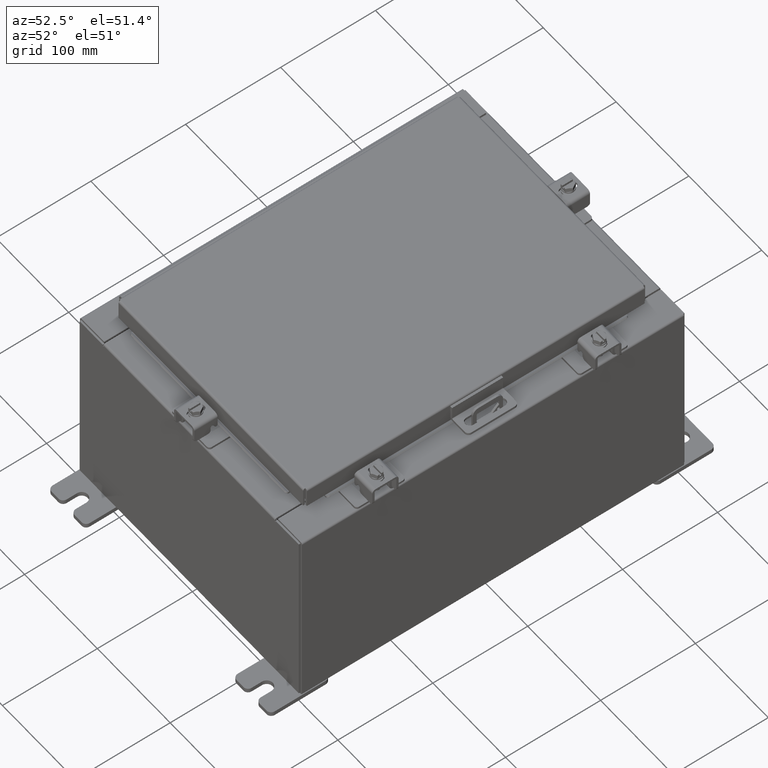
[diagram: clean part render]
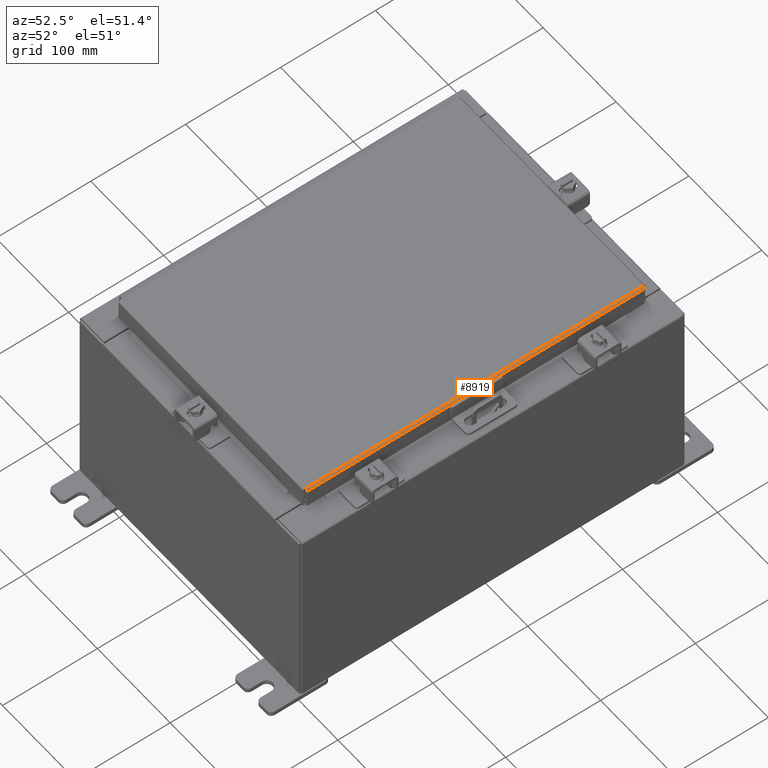
[diagram: same view with one face highlighted and labeled with its STEP entity id]
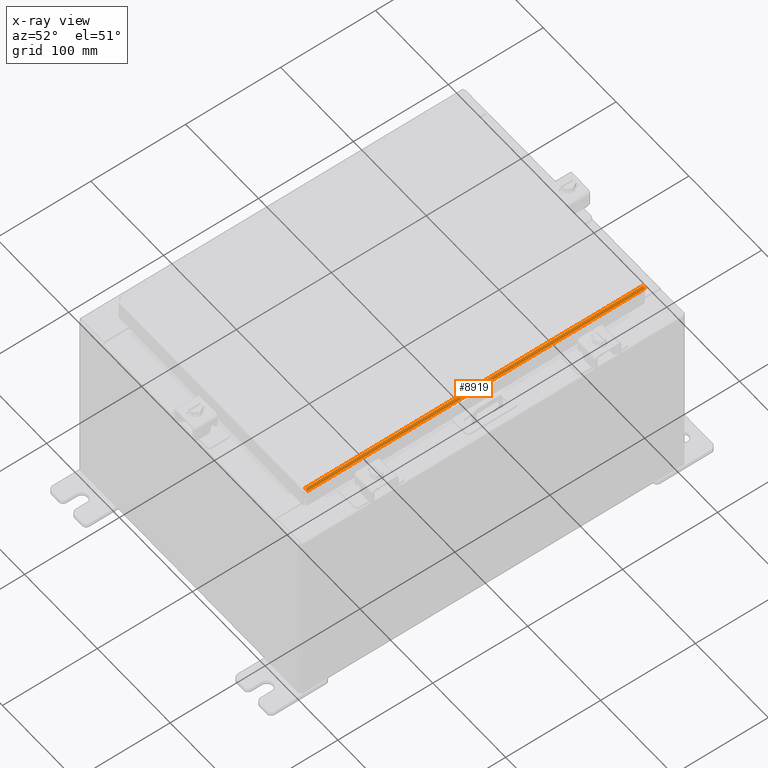
[diagram: x-ray of the same camera — body ghosted, the highlighted face saturated]
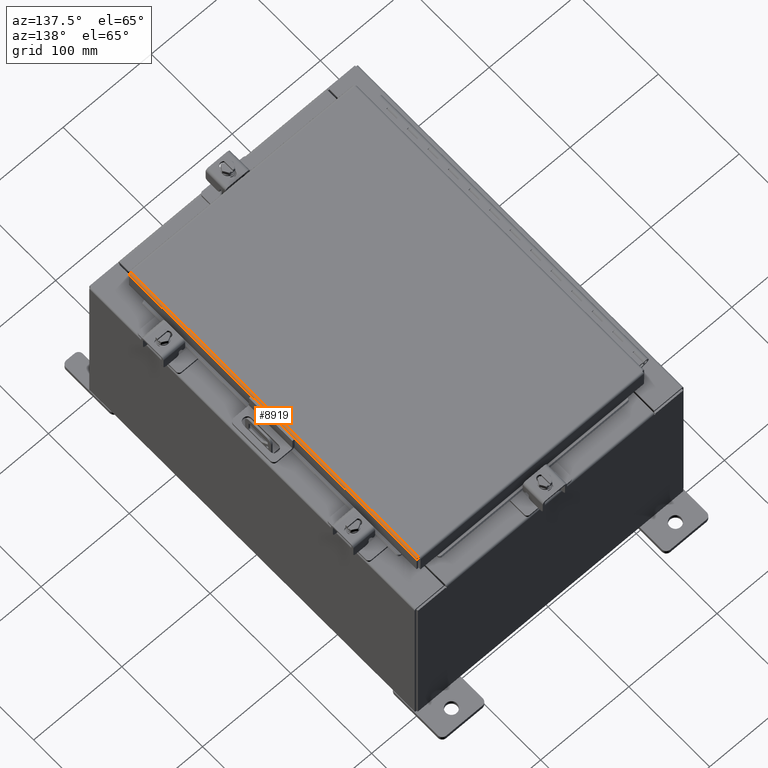
[diagram: same view with one face highlighted and labeled with its STEP entity id]
A machine part, auxiliary view. The second image highlights one B-rep face of the part: STEP entity #8919.
The next image is the same camera in x-ray: the body ghosted, the highlighted face saturated — about 0% of this face is hidden behind the body in this view.
A second angle (auxiliary view) of the same face is appended — the face is thin or edge-on in the first view.
In plain terms, the highlighted cylindrical surface (edge-blend (fillet) strip) has radius 2.2276 mm, axis along (-0, -1, -0).
Its self-contained STEP definition (entity closure, byte-faithful):
#147 = CARTESIAN_POINT ( 'NONE',  ( 4.990299999999998600, -7.006300000000000400, 3.414809992080329000E-016 ) ) ;
#513 = CARTESIAN_POINT ( 'NONE',  ( 4.990299999999998600, 7.006300000000000400, -2.048885995248197400E-016 ) ) ;
#3275 = ORIENTED_EDGE ( 'NONE', *, *, #8280, .F. ) ;
#3423 = VECTOR ( 'NONE', #21882, 39.37007874015748100 ) ;
#4015 = B_SPLINE_CURVE_WITH_KNOTS ( 'NONE', 3,
 ( #5132, #25199, #13107, #19168, #7152, #21193, #9172, #23240, #11202, #25280 ),
 .UNSPECIFIED., .F., .F.,
 ( 4, 2, 2, 2, 4 ),
 ( 0.0000000000000000000, 0.2500000000000000000, 0.5000000000000000000, 0.7500000000000000000, 1.000000000000000000 ),
 .UNSPECIFIED. ) ;
#5132 = CARTESIAN_POINT ( 'NONE',  ( 5.077999999999998500, -7.005157864376269700, -0.08769999999999897300 ) ) ;
#5522 = VERTEX_POINT ( 'NONE', #16359 ) ;
#5945 = CARTESIAN_POINT ( 'NONE',  ( 5.077999999999998500, 7.005157864376269700, -0.08769999999999951400 ) ) ;
#6046 = AXIS2_PLACEMENT_3D ( 'NONE', #23146, #11110, #20680 ) ;
#6446 = VERTEX_POINT ( 'NONE', #5945 ) ;
#6557 = CARTESIAN_POINT ( 'NONE',  ( 5.034467384578526600, 7.005919288125420900, -0.01106893374133180600 ) ) ;
#6686 = DIRECTION ( 'NONE',  ( 0.0000000000000000000, 1.000000000000000000, 0.0000000000000000000 ) ) ;
#6812 = EDGE_LOOP ( 'NONE', ( #9542, #3275, #22989, #7993 ) ) ;
#7042 = FACE_OUTER_BOUND ( 'NONE', #6812, .T. ) ;
#7152 = CARTESIAN_POINT ( 'NONE',  ( 5.060430782078317000, -7.005633754219491700, -0.03380425265819786400 ) ) ;
#7993 = ORIENTED_EDGE ( 'NONE', *, *, #23085, .F. ) ;
#8280 = EDGE_CURVE ( 'NONE', #14443, #12635, #4015, .T. ) ;
#8576 = CARTESIAN_POINT ( 'NONE',  ( 5.060430782078320500, 7.005633754219490000, -0.03380425265820125700 ) ) ;
#8610 = CARTESIAN_POINT ( 'NONE',  ( 5.077999999999998500, -7.005157864376269700, -0.08769999999999897300 ) ) ;
#8747 = LINE ( 'NONE', #26042, #3423 ) ;
#8919 = ADVANCED_FACE ( 'NONE', ( #7042 ), #17086, .T. ) ;
#9172 = CARTESIAN_POINT ( 'NONE',  ( 5.034467384578526600, -7.005919288125422600, -0.01106893374133063200 ) ) ;
#9542 = ORIENTED_EDGE ( 'NONE', *, *, #26069, .F. ) ;
#10613 = CARTESIAN_POINT ( 'NONE',  ( 5.075717403743809100, 7.005348220313559100, -0.06474471054169367300 ) ) ;
#11110 = DIRECTION ( 'NONE',  ( -0.0000000000000000000, -1.000000000000000000, -0.0000000000000000000 ) ) ;
#11202 = CARTESIAN_POINT ( 'NONE',  ( 5.001779903154990800, -7.006204822031357100, 3.426148228382157600E-016 ) ) ;
#12606 = CARTESIAN_POINT ( 'NONE',  ( 5.077999999999998500, 7.005157864376269700, -0.08769999999999951400 ) ) ;
#12635 = VERTEX_POINT ( 'NONE', #147 ) ;
#13107 = CARTESIAN_POINT ( 'NONE',  ( 5.075717403743807300, -7.005348220313559100, -0.06474471054168771900 ) ) ;
#13309 = VECTOR ( 'NONE', #6686, 39.37007874015748100 ) ;
#13938 = LINE ( 'NONE', #20662, #13309 ) ;
#14443 = VERTEX_POINT ( 'NONE', #8610 ) ;
#16359 = CARTESIAN_POINT ( 'NONE',  ( 4.990299999999998600, 7.006300000000000400, -2.048885995248197400E-016 ) ) ;
#16984 = EDGE_CURVE ( 'NONE', #6446, #14443, #8747, .T. ) ;
#17086 = CYLINDRICAL_SURFACE ( 'NONE', #6046, 0.08770000000000026400 ) ;
#18589 = CARTESIAN_POINT ( 'NONE',  ( 5.013255289458308900, 7.006109644062711100, -0.002282596256188504900 ) ) ;
#19168 = CARTESIAN_POINT ( 'NONE',  ( 5.066931066258664600, -7.005538576250844900, -0.04353261542146956400 ) ) ;
#20615 = CARTESIAN_POINT ( 'NONE',  ( 5.044195747341801100, 7.005824110156779300, -0.01756921792168015000 ) ) ;
#20662 = CARTESIAN_POINT ( 'NONE',  ( 4.990299999999998600, -7.006300000000000400, 3.414809992080329000E-016 ) ) ;
#20680 = DIRECTION ( 'NONE',  ( 1.000000000000000000, 0.0000000000000000000, 2.725618009642215600E-015 ) ) ;
#21193 = CARTESIAN_POINT ( 'NONE',  ( 5.044195747341799300, -7.005824110156780200, -0.01756921792167830500 ) ) ;
#21882 = DIRECTION ( 'NONE',  ( -2.171061248348209200E-031, -1.000000000000000000, 7.701855070945201600E-017 ) ) ;
#22629 = CARTESIAN_POINT ( 'NONE',  ( 5.066931066258668200, 7.005538576250847500, -0.04353261542147385900 ) ) ;
#22989 = ORIENTED_EDGE ( 'NONE', *, *, #16984, .F. ) ;
#23085 = EDGE_CURVE ( 'NONE', #5522, #6446, #25129, .T. ) ;
#23146 = CARTESIAN_POINT ( 'NONE',  ( 4.990299999999998600, -7.006300000000000400, -0.08769999999999975000 ) ) ;
#23240 = CARTESIAN_POINT ( 'NONE',  ( 5.013255289458306200, -7.006109644062711100, -0.002282596256188245100 ) ) ;
#24602 = CARTESIAN_POINT ( 'NONE',  ( 5.001779903154991700, 7.006204822031357100, 3.421479542846109600E-016 ) ) ;
#24686 = CARTESIAN_POINT ( 'NONE',  ( 5.077999999999998500, 7.005253042344914900, -0.07622009684501027100 ) ) ;
#25129 = B_SPLINE_CURVE_WITH_KNOTS ( 'NONE', 3,
 ( #513, #24602, #18589, #6557, #20615, #8576, #22629, #10613, #24686, #12606 ),
 .UNSPECIFIED., .F., .F.,
 ( 4, 2, 2, 2, 4 ),
 ( 0.0000000000000000000, 0.2500000000000000000, 0.5000000000000000000, 0.7500000000000000000, 1.000000000000000000 ),
 .UNSPECIFIED. ) ;
#25199 = CARTESIAN_POINT ( 'NONE',  ( 5.077999999999997600, -7.005253042344914900, -0.07622009684500344300 ) ) ;
#25280 = CARTESIAN_POINT ( 'NONE',  ( 4.990299999999998600, -7.006300000000000400, 3.414809992080329000E-016 ) ) ;
#26042 = CARTESIAN_POINT ( 'NONE',  ( 5.077999999999998500, -6.754526897220028000E-018, -0.08769999999999951400 ) ) ;
#26069 = EDGE_CURVE ( 'NONE', #12635, #5522, #13938, .T. ) ;